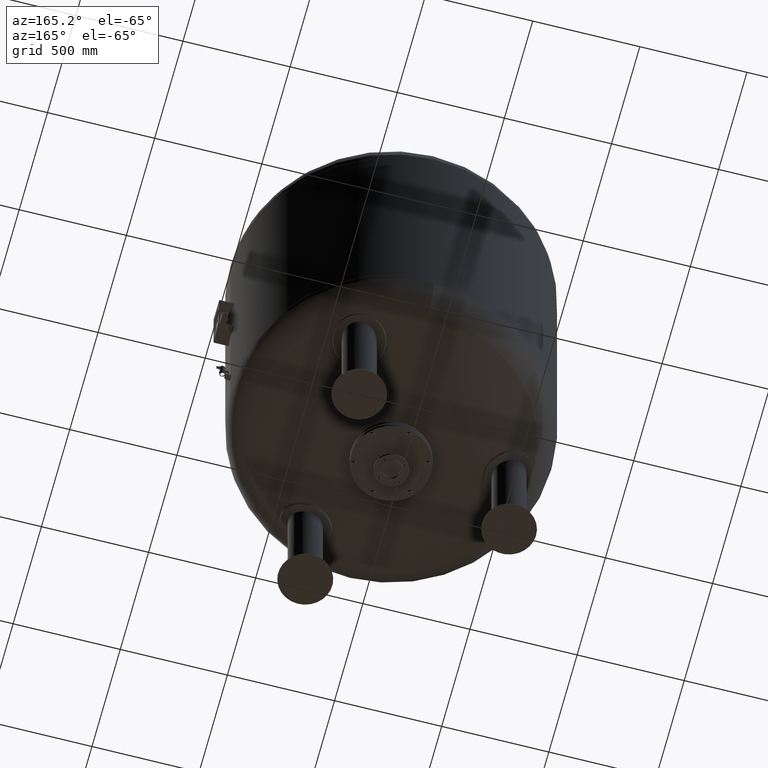
[diagram: clean part render]
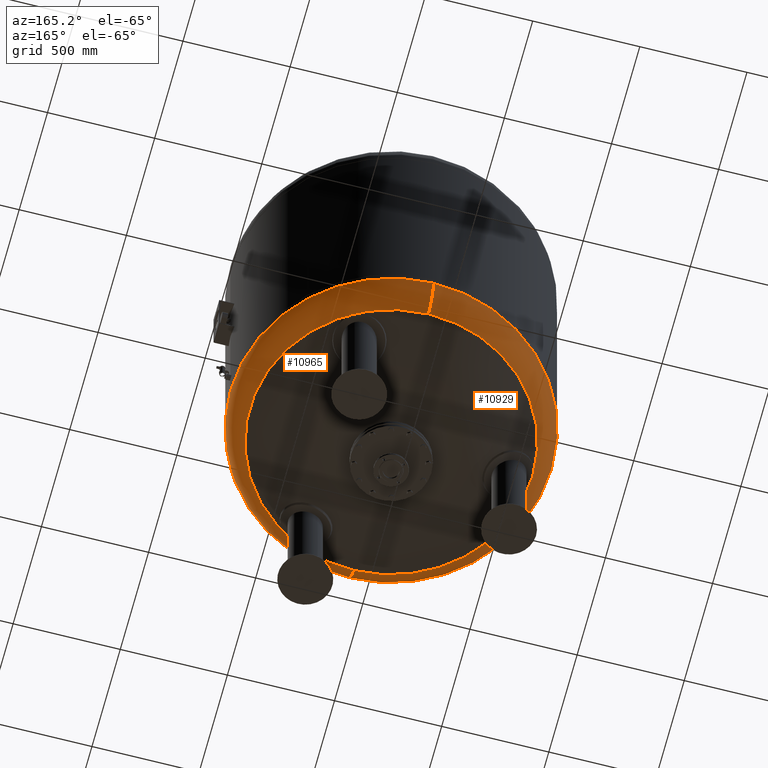
[diagram: same view with one multi-face feature highlighted, each face labeled with its STEP entity id]
A machine part, auxiliary view. The highlighted faces form ONE feature: a constant-radius fillet chain: 2 tangent blend faces with common blend radius 159 mm. The faces share edges in the B-rep.
Their STEP definitions:
[1] entity #10965 (Torus):
#10851=CARTESIAN_POINT('',(750.0,3.761120E-014,784.237667415898160));
#10852=VERTEX_POINT('',#10851);
#10859=CARTESIAN_POINT('',(-1.628998E-013,750.0,784.237667415898270));
#10860=VERTEX_POINT('',#10859);
#10861=CARTESIAN_POINT('',(-5.075605E-014,-5.423428E-014,784.237667415898160));
#10862=DIRECTION('',(0.0,0.0,1.0));
#10863=DIRECTION('',(-1.0,0.0,0.0));
#10864=AXIS2_PLACEMENT_3D('',#10861,#10862,#10863);
#10865=CIRCLE('',#10864,750.0);
#10866=EDGE_CURVE('',#10852,#10860,#10865,.T.);
#10883=CARTESIAN_POINT('',(-7.105427E-014,-750.0,784.237667415898040));
#10884=VERTEX_POINT('',#10883);
#10885=CARTESIAN_POINT('',(-4.647817E-014,-660.606666666666800,641.283437133770350));
#10886=VERTEX_POINT('',#10885);
#10887=CARTESIAN_POINT('',(-7.105427E-014,-591.0,784.237667415898040));
#10888=DIRECTION('',(1.0,0.0,0.0));
#10889=DIRECTION('',(0.0,-1.0,0.0));
#10890=AXIS2_PLACEMENT_3D('',#10887,#10888,#10889);
#10891=CIRCLE('',#10890,159.0);
#10892=EDGE_CURVE('',#10884,#10886,#10891,.T.);
#10902=CARTESIAN_POINT('',(-1.273765E-013,660.606666666666800,641.283437133770800));
#10903=VERTEX_POINT('',#10902);
#10904=CARTESIAN_POINT('',(-1.434285E-013,591.0,784.237667415898270));
#10905=DIRECTION('',(-1.0,0.0,0.0));
#10906=DIRECTION('',(0.0,1.0,0.0));
#10907=AXIS2_PLACEMENT_3D('',#10904,#10905,#10906);
#10908=CIRCLE('',#10907,159.0);
#10909=EDGE_CURVE('',#10860,#10903,#10908,.T.);
#10937=CARTESIAN_POINT('',(-2.617994E-014,-2.797401E-014,641.283437133770580));
#10938=DIRECTION('',(0.0,0.0,1.0));
#10939=DIRECTION('',(-1.0,0.0,0.0));
#10940=AXIS2_PLACEMENT_3D('',#10937,#10938,#10939);
#10941=CIRCLE('',#10940,660.606666666666800);
#10942=EDGE_CURVE('',#10886,#10903,#10941,.T.);
#10947=CARTESIAN_POINT('',(-7.105427E-014,-5.423428E-014,784.237667415898160));
#10948=DIRECTION('',(-1.719159E-016,-1.836970E-016,1.0));
#10949=DIRECTION('',(0.0,-1.0,0.0));
#10950=AXIS2_PLACEMENT_3D('',#10947,#10948,#10949);
#10951=TOROIDAL_SURFACE('',#10950,591.0,159.0);
#10952=ORIENTED_EDGE('',*,*,#10892,.T.);
#10953=ORIENTED_EDGE('',*,*,#10942,.T.);
#10954=ORIENTED_EDGE('',*,*,#10909,.F.);
#10955=ORIENTED_EDGE('',*,*,#10866,.F.);
#10956=CARTESIAN_POINT('',(-5.075605E-014,-5.423428E-014,784.237667415898160));
#10957=DIRECTION('',(0.0,0.0,1.0));
#10958=DIRECTION('',(-1.0,0.0,0.0));
#10959=AXIS2_PLACEMENT_3D('',#10956,#10957,#10958);
#10960=CIRCLE('',#10959,750.0);
#10961=EDGE_CURVE('',#10884,#10852,#10960,.T.);
#10962=ORIENTED_EDGE('',*,*,#10961,.F.);
#10963=EDGE_LOOP('',(#10952,#10953,#10954,#10955,#10962));
#10964=FACE_OUTER_BOUND('',#10963,.T.);
#10965=ADVANCED_FACE('',(#10964),#10951,.T.);
[2] entity #10929 (Torus):
#10834=CARTESIAN_POINT('',(-750.0,-5.423428E-014,784.237667415897930));
#10835=VERTEX_POINT('',#10834);
#10859=CARTESIAN_POINT('',(-1.628998E-013,750.0,784.237667415898270));
#10860=VERTEX_POINT('',#10859);
#10868=CARTESIAN_POINT('',(-5.075605E-014,-5.423428E-014,784.237667415898160));
#10869=DIRECTION('',(0.0,0.0,1.0));
#10870=DIRECTION('',(-1.0,0.0,0.0));
#10871=AXIS2_PLACEMENT_3D('',#10868,#10869,#10870);
#10872=CIRCLE('',#10871,750.0);
#10873=EDGE_CURVE('',#10860,#10835,#10872,.T.);
#10878=CARTESIAN_POINT('',(-7.105427E-014,-5.423428E-014,784.237667415898160));
#10879=DIRECTION('',(-1.719159E-016,-1.836970E-016,1.0));
#10880=DIRECTION('',(0.0,-1.0,0.0));
#10881=AXIS2_PLACEMENT_3D('',#10878,#10879,#10880);
#10882=TOROIDAL_SURFACE('',#10881,591.0,159.0);
#10883=CARTESIAN_POINT('',(-7.105427E-014,-750.0,784.237667415898040));
#10884=VERTEX_POINT('',#10883);
#10885=CARTESIAN_POINT('',(-4.647817E-014,-660.606666666666800,641.283437133770350));
#10886=VERTEX_POINT('',#10885);
#10887=CARTESIAN_POINT('',(-7.105427E-014,-591.0,784.237667415898040));
#10888=DIRECTION('',(1.0,0.0,0.0));
#10889=DIRECTION('',(0.0,-1.0,0.0));
#10890=AXIS2_PLACEMENT_3D('',#10887,#10888,#10889);
#10891=CIRCLE('',#10890,159.0);
#10892=EDGE_CURVE('',#10884,#10886,#10891,.T.);
#10893=ORIENTED_EDGE('',*,*,#10892,.F.);
#10894=CARTESIAN_POINT('',(-5.075605E-014,-5.423428E-014,784.237667415898160));
#10895=DIRECTION('',(0.0,0.0,1.0));
#10896=DIRECTION('',(-1.0,0.0,0.0));
#10897=AXIS2_PLACEMENT_3D('',#10894,#10895,#10896);
#10898=CIRCLE('',#10897,750.0);
#10899=EDGE_CURVE('',#10835,#10884,#10898,.T.);
#10900=ORIENTED_EDGE('',*,*,#10899,.F.);
#10901=ORIENTED_EDGE('',*,*,#10873,.F.);
#10902=CARTESIAN_POINT('',(-1.273765E-013,660.606666666666800,641.283437133770800));
#10903=VERTEX_POINT('',#10902);
#10904=CARTESIAN_POINT('',(-1.434285E-013,591.0,784.237667415898270));
#10905=DIRECTION('',(-1.0,0.0,0.0));
#10906=DIRECTION('',(0.0,1.0,0.0));
#10907=AXIS2_PLACEMENT_3D('',#10904,#10905,#10906);
#10908=CIRCLE('',#10907,159.0);
#10909=EDGE_CURVE('',#10860,#10903,#10908,.T.);
#10910=ORIENTED_EDGE('',*,*,#10909,.T.);
#10911=CARTESIAN_POINT('',(-660.606666666666800,-2.797401E-014,641.283437133770460));
#10912=VERTEX_POINT('',#10911);
#10913=CARTESIAN_POINT('',(-2.617994E-014,-2.797401E-014,641.283437133770580));
#10914=DIRECTION('',(0.0,0.0,1.0));
#10915=DIRECTION('',(-1.0,0.0,0.0));
#10916=AXIS2_PLACEMENT_3D('',#10913,#10914,#10915);
#10917=CIRCLE('',#10916,660.606666666666800);
#10918=EDGE_CURVE('',#10903,#10912,#10917,.T.);
#10919=ORIENTED_EDGE('',*,*,#10918,.T.);
#10920=CARTESIAN_POINT('',(-2.617994E-014,-2.797401E-014,641.283437133770580));
#10921=DIRECTION('',(0.0,0.0,1.0));
#10922=DIRECTION('',(-1.0,0.0,0.0));
#10923=AXIS2_PLACEMENT_3D('',#10920,#10921,#10922);
#10924=CIRCLE('',#10923,660.606666666666800);
#10925=EDGE_CURVE('',#10912,#10886,#10924,.T.);
#10926=ORIENTED_EDGE('',*,*,#10925,.T.);
#10927=EDGE_LOOP('',(#10893,#10900,#10901,#10910,#10919,#10926));
#10928=FACE_OUTER_BOUND('',#10927,.T.);
#10929=ADVANCED_FACE('',(#10928),#10882,.T.);